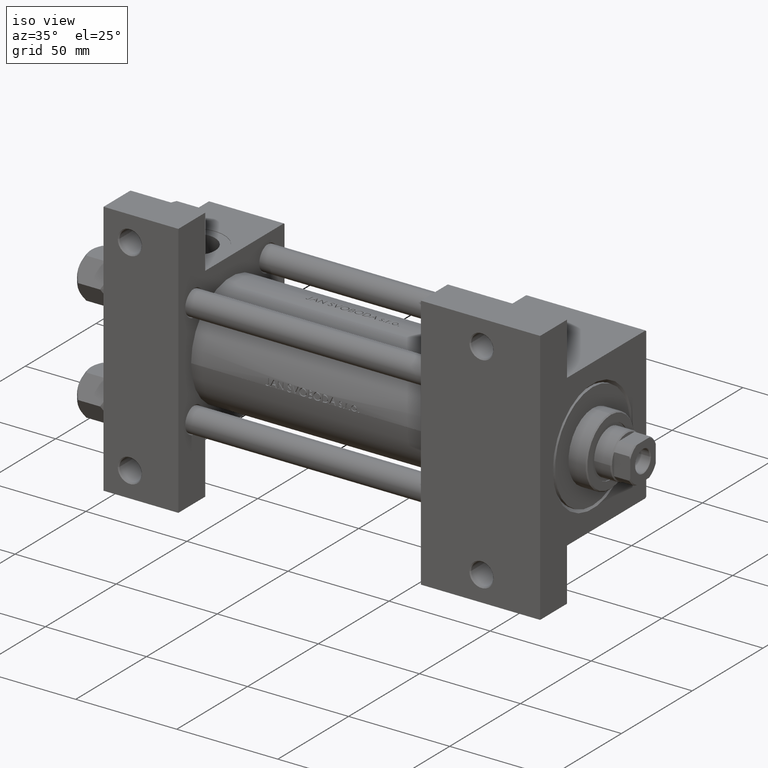
[diagram: clean part render]
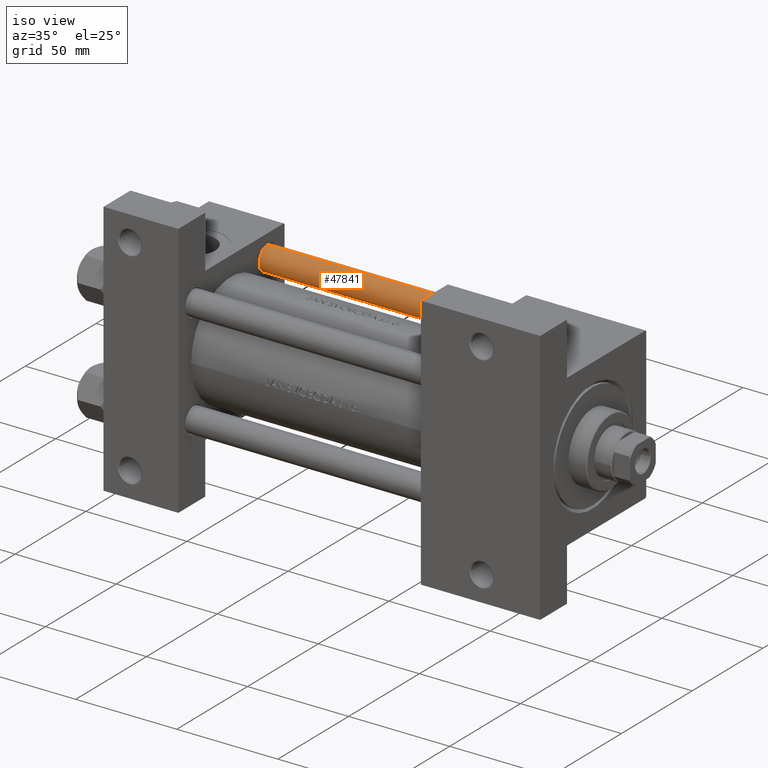
[diagram: same view with one face highlighted and labeled with its STEP entity id]
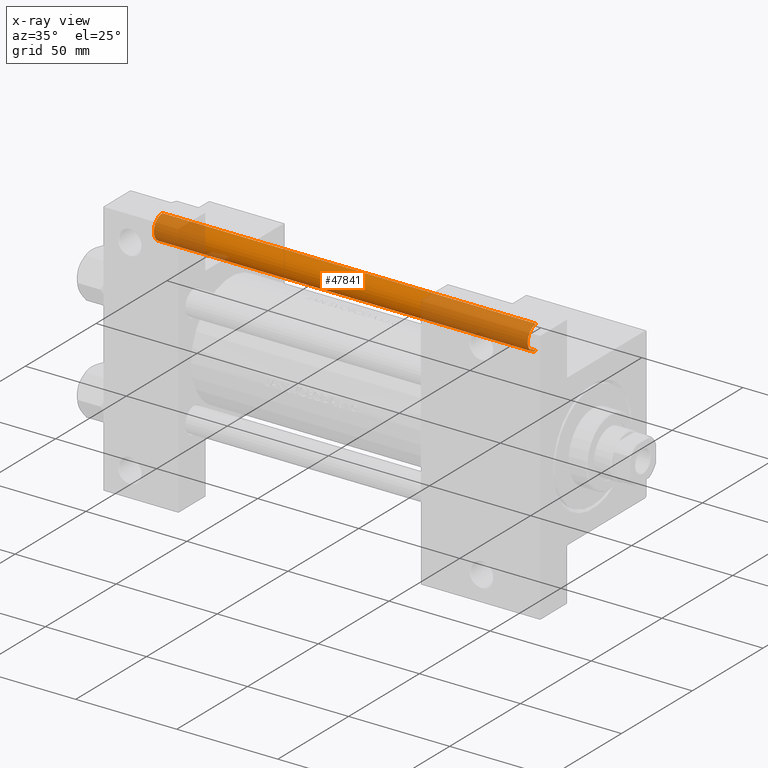
[diagram: x-ray of the same camera — body ghosted, the highlighted face saturated]
A machine part, iso view. The second image highlights one B-rep face of the part: STEP entity #47841.
The next image is the same camera in x-ray: the body ghosted, the highlighted face saturated — about 43% of this face is hidden behind the body in this view.
In plain terms, the highlighted cylindrical surface (edge-blend (fillet) strip) has radius 6 mm, axis along (-1, -0, -0).
Its self-contained STEP definition (entity closure, byte-faithful):
#112 = ORIENTED_EDGE ( 'NONE', *, *, #26104, .F. ) ;
#891 = CIRCLE ( 'NONE', #5654, 6.000000000000000888 ) ;
#1767 = FACE_OUTER_BOUND ( 'NONE', #44161, .T. ) ;
#2397 = LINE ( 'NONE', #25070, #36919 ) ;
#3844 = VERTEX_POINT ( 'NONE', #12881 ) ;
#3929 = VERTEX_POINT ( 'NONE', #40717 ) ;
#5654 = AXIS2_PLACEMENT_3D ( 'NONE', #44267, #29094, #29343 ) ;
#5994 = DIRECTION ( 'NONE',  ( -1.000000000000000000, 0.000000000000000000, 0.000000000000000000 ) ) ;
#6281 = LINE ( 'NONE', #36901, #20197 ) ;
#6398 = AXIS2_PLACEMENT_3D ( 'NONE', #24927, #40102, #5994 ) ;
#9737 = CYLINDRICAL_SURFACE ( 'NONE', #6398, 6.000000000000000888 ) ;
#12365 = EDGE_CURVE ( 'NONE', #46545, #3844, #2397, .T. ) ;
#12881 = CARTESIAN_POINT ( 'NONE',  ( -6.000000000000000888, 0.000000000000000000, 0.5000000000001392220 ) ) ;
#19990 = EDGE_CURVE ( 'NONE', #3844, #22660, #38724, .T. ) ;
#20197 = VECTOR ( 'NONE', #36172, 1000.000000000000000 ) ;
#22168 = ORIENTED_EDGE ( 'NONE', *, *, #48255, .T. ) ;
#22660 = VERTEX_POINT ( 'NONE', #26752 ) ;
#23626 = AXIS2_PLACEMENT_3D ( 'NONE', #25255, #32242, #47426 ) ;
#24927 = CARTESIAN_POINT ( 'NONE',  ( 0.000000000000000000, 0.000000000000000000, 186.0000000000000000 ) ) ;
#25070 = CARTESIAN_POINT ( 'NONE',  ( -6.000000000000000888, 0.000000000000000000, 186.0000000000000000 ) ) ;
#25255 = CARTESIAN_POINT ( 'NONE',  ( 0.000000000000000000, 0.000000000000000000, 0.5000000000001392220 ) ) ;
#26104 = EDGE_CURVE ( 'NONE', #3929, #22660, #6281, .T. ) ;
#26752 = CARTESIAN_POINT ( 'NONE',  ( 6.000000000000000888, 7.347880794884119736E-16, 0.5000000000001392220 ) ) ;
#27185 = ORIENTED_EDGE ( 'NONE', *, *, #12365, .T. ) ;
#29094 = DIRECTION ( 'NONE',  ( 0.000000000000000000, 0.000000000000000000, -1.000000000000000000 ) ) ;
#29343 = DIRECTION ( 'NONE',  ( 1.000000000000000000, 0.000000000000000000, 0.000000000000000000 ) ) ;
#29538 = DIRECTION ( 'NONE',  ( -0.000000000000000000, -0.000000000000000000, -1.000000000000000000 ) ) ;
#32242 = DIRECTION ( 'NONE',  ( -0.000000000000000000, -0.000000000000000000, 1.000000000000000000 ) ) ;
#36172 = DIRECTION ( 'NONE',  ( -0.000000000000000000, -0.000000000000000000, -1.000000000000000000 ) ) ;
#36901 = CARTESIAN_POINT ( 'NONE',  ( 6.000000000000000888, 7.347880794884119736E-16, 186.0000000000000000 ) ) ;
#36919 = VECTOR ( 'NONE', #29538, 1000.000000000000000 ) ;
#38724 = CIRCLE ( 'NONE', #23626, 6.000000000000000888 ) ;
#40102 = DIRECTION ( 'NONE',  ( -0.000000000000000000, -0.000000000000000000, -1.000000000000000000 ) ) ;
#40717 = CARTESIAN_POINT ( 'NONE',  ( 6.000000000000000888, 7.347880794884119736E-16, 185.5000000000000568 ) ) ;
#41760 = ORIENTED_EDGE ( 'NONE', *, *, #19990, .T. ) ;
#44161 = EDGE_LOOP ( 'NONE', ( #112, #22168, #27185, #41760 ) ) ;
#44267 = CARTESIAN_POINT ( 'NONE',  ( 0.000000000000000000, 0.000000000000000000, 185.5000000000000568 ) ) ;
#44879 = CARTESIAN_POINT ( 'NONE',  ( -6.000000000000000888, 0.000000000000000000, 185.5000000000000568 ) ) ;
#46545 = VERTEX_POINT ( 'NONE', #44879 ) ;
#47426 = DIRECTION ( 'NONE',  ( 1.000000000000000000, 0.000000000000000000, 0.000000000000000000 ) ) ;
#47841 = ADVANCED_FACE ( 'NONE', ( #1767 ), #9737, .T. ) ;
#48255 = EDGE_CURVE ( 'NONE', #3929, #46545, #891, .T. ) ;